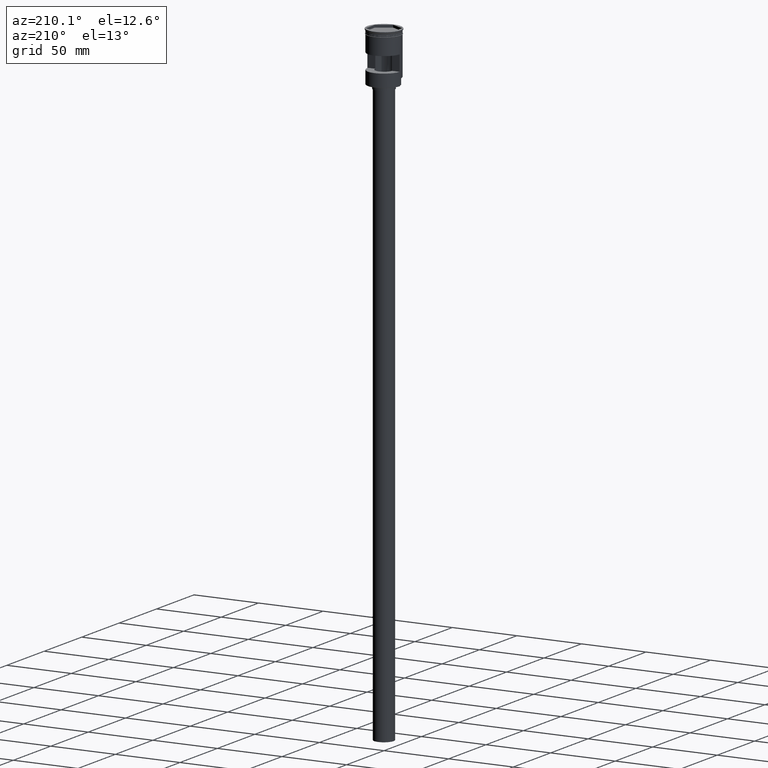
[diagram: clean part render]
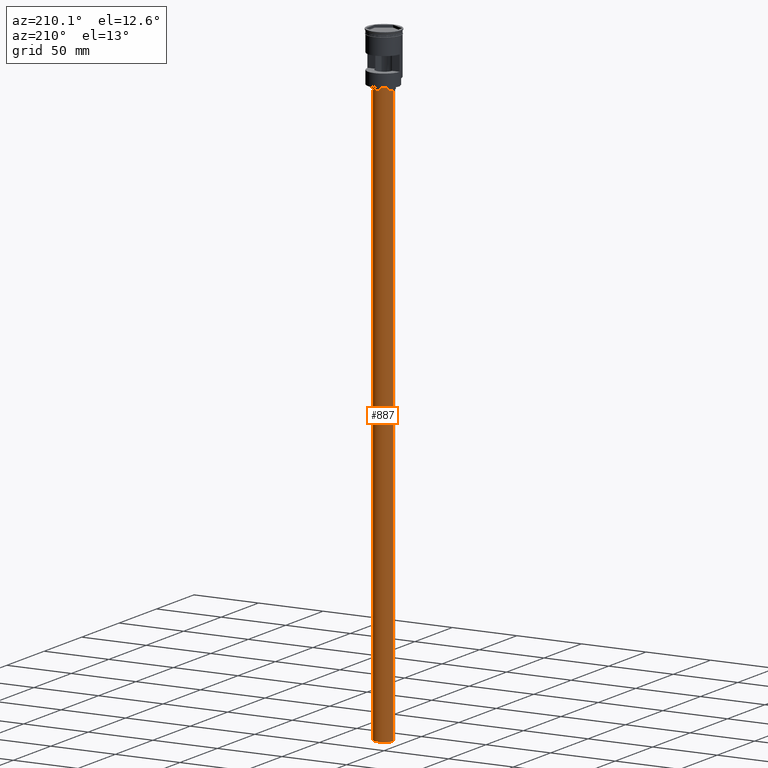
[diagram: same view with one face highlighted and labeled with its STEP entity id]
A machine part, auxiliary view. The second image highlights one B-rep face of the part: STEP entity #887.
In plain terms, the highlighted cylindrical surface (edge-blend (fillet) strip) has radius 7.5 mm, axis along (-0, -0, 1).
Its self-contained STEP definition (entity closure, byte-faithful):
#38 = EDGE_CURVE ( 'NONE', #683, #205, #1401, .T. ) ;
#203 = ORIENTED_EDGE ( 'NONE', *, *, #1171, .F. ) ;
#205 = VERTEX_POINT ( 'NONE', #575 ) ;
#230 = CIRCLE ( 'NONE', #1063, 7.500000000000000000 ) ;
#282 = VECTOR ( 'NONE', #790, 1000.000000000000000 ) ;
#367 = LINE ( 'NONE', #885, #282 ) ;
#418 = CARTESIAN_POINT ( 'NONE',  ( 0.000000000000000000, 0.000000000000000000, -488.5000000000000000 ) ) ;
#473 = LINE ( 'NONE', #1226, #494 ) ;
#476 = CARTESIAN_POINT ( 'NONE',  ( -7.500000000000000000, 9.184850993605147944E-16, -41.50000000000000000 ) ) ;
#494 = VECTOR ( 'NONE', #1353, 1000.000000000000000 ) ;
#507 = EDGE_CURVE ( 'NONE', #1458, #547, #230, .T. ) ;
#547 = VERTEX_POINT ( 'NONE', #608 ) ;
#570 = CYLINDRICAL_SURFACE ( 'NONE', #1090, 7.500000000000000000 ) ;
#575 = CARTESIAN_POINT ( 'NONE',  ( 7.500000000000000000, 0.000000000000000000, -488.5000000000000000 ) ) ;
#608 = CARTESIAN_POINT ( 'NONE',  ( 7.500000000000000000, 0.000000000000000000, -41.50000000000000000 ) ) ;
#683 = VERTEX_POINT ( 'NONE', #1038 ) ;
#748 = ORIENTED_EDGE ( 'NONE', *, *, #1091, .T. ) ;
#790 = DIRECTION ( 'NONE',  ( -0.000000000000000000, -0.000000000000000000, 1.000000000000000000 ) ) ;
#833 = CARTESIAN_POINT ( 'NONE',  ( 0.000000000000000000, 0.000000000000000000, -488.5000000000000000 ) ) ;
#885 = CARTESIAN_POINT ( 'NONE',  ( 7.500000000000000000, 0.000000000000000000, -488.5000000000000000 ) ) ;
#887 = ADVANCED_FACE ( 'NONE', ( #1089 ), #570, .T. ) ;
#986 = DIRECTION ( 'NONE',  ( -1.000000000000000000, 0.000000000000000000, 0.000000000000000000 ) ) ;
#1012 = DIRECTION ( 'NONE',  ( 0.000000000000000000, 0.000000000000000000, -1.000000000000000000 ) ) ;
#1017 = DIRECTION ( 'NONE',  ( -1.000000000000000000, 0.000000000000000000, 0.000000000000000000 ) ) ;
#1038 = CARTESIAN_POINT ( 'NONE',  ( -7.500000000000000000, 9.184850993605147944E-16, -488.5000000000000000 ) ) ;
#1063 = AXIS2_PLACEMENT_3D ( 'NONE', #1159, #1012, #1017 ) ;
#1076 = EDGE_LOOP ( 'NONE', ( #1263, #748, #1415, #203 ) ) ;
#1089 = FACE_OUTER_BOUND ( 'NONE', #1076, .T. ) ;
#1090 = AXIS2_PLACEMENT_3D ( 'NONE', #833, #1312, #1205 ) ;
#1091 = EDGE_CURVE ( 'NONE', #683, #1458, #473, .T. ) ;
#1159 = CARTESIAN_POINT ( 'NONE',  ( 0.000000000000000000, 0.000000000000000000, -41.50000000000000000 ) ) ;
#1171 = EDGE_CURVE ( 'NONE', #205, #547, #367, .T. ) ;
#1205 = DIRECTION ( 'NONE',  ( 1.000000000000000000, 0.000000000000000000, 0.000000000000000000 ) ) ;
#1226 = CARTESIAN_POINT ( 'NONE',  ( -7.500000000000000000, 9.184850993605147944E-16, -488.5000000000000000 ) ) ;
#1263 = ORIENTED_EDGE ( 'NONE', *, *, #38, .F. ) ;
#1298 = DIRECTION ( 'NONE',  ( 0.000000000000000000, 0.000000000000000000, -1.000000000000000000 ) ) ;
#1312 = DIRECTION ( 'NONE',  ( -0.000000000000000000, -0.000000000000000000, 1.000000000000000000 ) ) ;
#1352 = AXIS2_PLACEMENT_3D ( 'NONE', #418, #1298, #986 ) ;
#1353 = DIRECTION ( 'NONE',  ( -0.000000000000000000, -0.000000000000000000, 1.000000000000000000 ) ) ;
#1401 = CIRCLE ( 'NONE', #1352, 7.500000000000000000 ) ;
#1415 = ORIENTED_EDGE ( 'NONE', *, *, #507, .T. ) ;
#1458 = VERTEX_POINT ( 'NONE', #476 ) ;